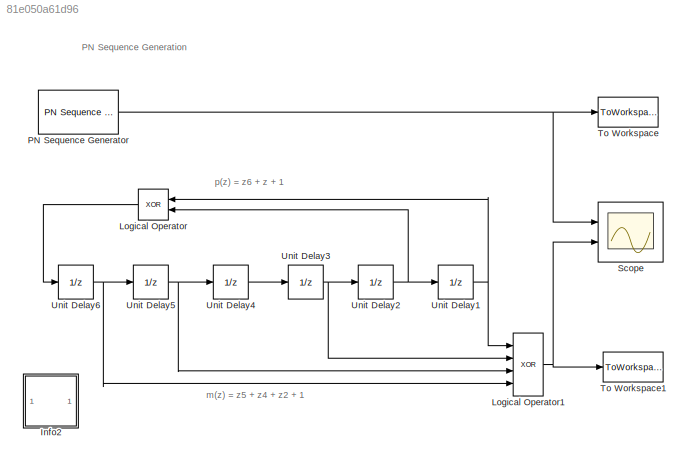
MODEL slx_81e050a61d96
KIND model
CONFIG PreLoadFcn = iniStates = [ 0 0 1 0 1 1];\n
BLOCK [SubSystem] Info2
  AncestorBlock = commblksprivate/Info
  OpenFcn = helpview([docroot '/toolbox/comm/comm.map'], 'doc_pnseq2')
  Ports = []
  RequestExecContextInheritance = off
BLOCK [Logic] Logical Operator
  AllPortsSameDT = off
  Operator = XOR
  OutDataTypeStr = boolean
  Ports = [2, 1]
BLOCK [Logic] Logical Operator1
  AllPortsSameDT = off
  Inputs = 4
  Operator = XOR
  OutDataTypeStr = boolean
  Ports = [4, 1]
BLOCK [Reference] PN Sequence Generator  REF=commseqgen2/PN Sequence
Generator
  Ports = [0, 1]
  SourceBlock = commseqgen2/PN Sequence\nGenerator
  SourceType = PN Sequence Generator
  Ts = 1
  bitPackDataSigned = off
  bitPackedOutDType = double
  bitPackedOutputs = off
  frameBased = off
  ini_sta = iniStates
  maxOutSize = [10 1]
  maxOutSizeMode = Dialog parameter
  numPackedBits = 8
  outBitMaskSource = Dialog parameter
  outDataType = boolean
  outVarSiz = off
  poly = [1 0 0 0 0 1 1]
  reset = off
  sampPerFrame = 63
  shift = [1 1 0 1 0 1]
BLOCK [Scope] Scope
  DataFormat = StructureWithTime
  Floating = off
  NumInputPorts = 2
  Ports = [2]
  SampleTime = 0
  ShowLegends = off
  YMax = 5~5
  YMin = -5~-5
BLOCK [ToWorkspace] To Workspace
  MaxDataPoints = inf
  Ports = [1]
  SampleTime = -1
  VariableName = pn
BLOCK [ToWorkspace] To Workspace1
  MaxDataPoints = inf
  Ports = [1]
  SampleTime = -1
  VariableName = pn_sl
BLOCK [UnitDelay] Unit Delay1
  InitialCondition = iniStates(6)
  SampleTime = -1
BLOCK [UnitDelay] Unit Delay2
  InitialCondition = iniStates(5)
  SampleTime = -1
BLOCK [UnitDelay] Unit Delay3
  InitialCondition = iniStates(4)
  SampleTime = -1
BLOCK [UnitDelay] Unit Delay4
  InitialCondition = iniStates(3)
  SampleTime = -1
BLOCK [UnitDelay] Unit Delay5
  InitialCondition = iniStates(2)
  SampleTime = -1
BLOCK [UnitDelay] Unit Delay6
  InitialCondition = iniStates(1)
  SampleTime = -1
ANNOTATION (root): PN Sequence Generation
ANNOTATION (root): m(z) = z5 + z4 + z2 + 1
ANNOTATION (root): p(z) = z6 + z + 1
NET Logical Operator1:1 -> Scope:2, To Workspace1:1
LINE Logical Operator:1 -> Unit Delay6:1
NET PN Sequence Generator:1 -> Scope:1, To Workspace:1
NET Unit Delay1:1 -> Logical Operator1:1, Logical Operator:1
NET Unit Delay2:1 -> Logical Operator:2, Unit Delay1:1
NET Unit Delay3:1 -> Logical Operator1:2, Unit Delay2:1
LINE Unit Delay4:1 -> Unit Delay3:1
NET Unit Delay5:1 -> Logical Operator1:3, Unit Delay4:1
NET Unit Delay6:1 -> Logical Operator1:4, Unit Delay5:1
note: NET lines group one-source signal fan-out (src -> all destinations, sorted); 1:1 wires keep LINE
